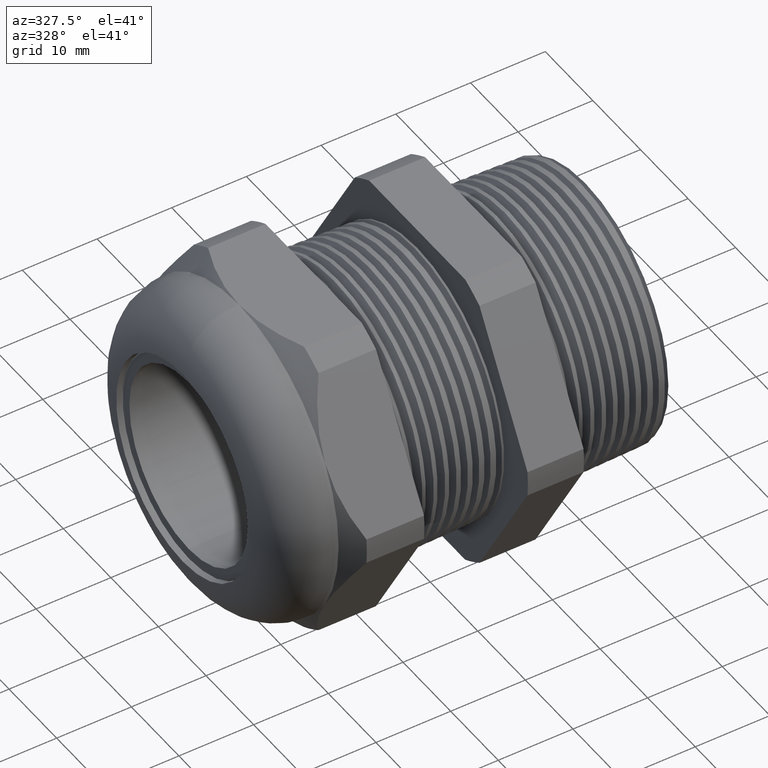
[diagram: clean part render]
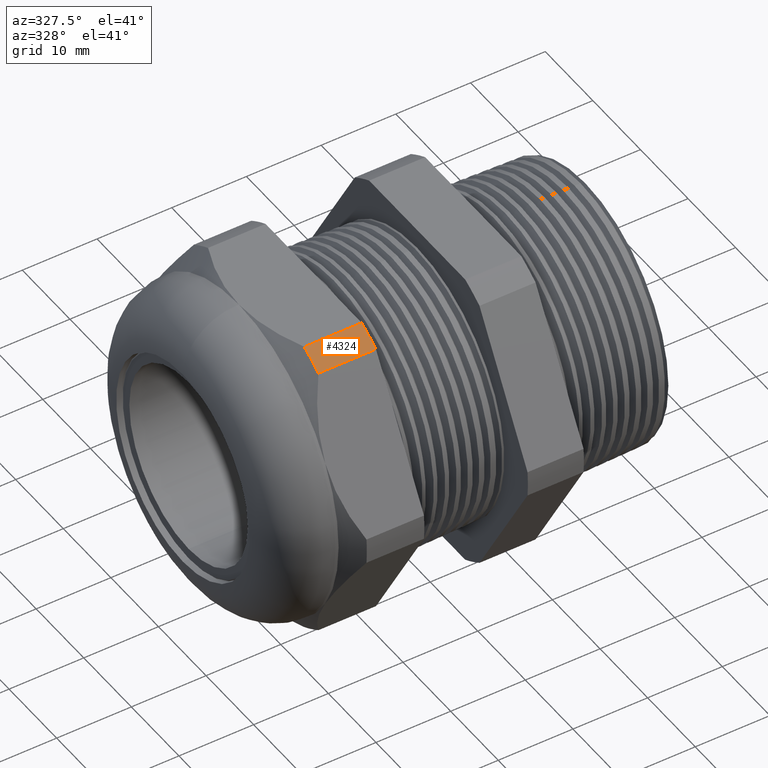
[diagram: same view with one face highlighted and labeled with its STEP entity id]
A machine part, auxiliary view. The second image highlights one B-rep face of the part: STEP entity #4324.
In plain terms, the highlighted cylindrical surface (partial cylindrical patch) has radius 23.26 mm, axis along (-1, 0, 0).
Its self-contained STEP definition (entity closure, byte-faithful):
#123 = CARTESIAN_POINT ( 'NONE',  ( -1.151023622047244100, -0.5157418318598042700, 0.7567089436301738200 ) ) ;
#137 = CIRCLE ( 'NONE', #197, 0.9157500000000000600 ) ;
#171 = DIRECTION ( 'NONE',  ( -1.000000000000000000, 0.0000000000000000000, 0.0000000000000000000 ) ) ;
#172 = VECTOR ( 'NONE', #171, 39.37007874015748100 ) ;
#173 = CARTESIAN_POINT ( 'NONE',  ( 0.2800000000000000300, -0.3974582525247151200, 0.8249999999999999600 ) ) ;
#174 = LINE ( 'NONE', #173, #172 ) ;
#175 = CARTESIAN_POINT ( 'NONE',  ( -1.151023622047244100, -0.3974582525247151200, 0.8249999999999999600 ) ) ;
#184 = DIRECTION ( 'NONE',  ( -1.000000000000000000, 0.0000000000000000000, 0.0000000000000000000 ) ) ;
#185 = VECTOR ( 'NONE', #184, 39.37007874015748100 ) ;
#186 = CARTESIAN_POINT ( 'NONE',  ( 0.2800000000000000300, -0.5157418318598042700, 0.7567089436301738200 ) ) ;
#187 = DIRECTION ( 'NONE',  ( 0.0000000000000000000, 0.0000000000000000000, 1.000000000000000000 ) ) ;
#188 = DIRECTION ( 'NONE',  ( -1.000000000000000000, 0.0000000000000000000, 0.0000000000000000000 ) ) ;
#189 = AXIS2_PLACEMENT_3D ( 'NONE', #192, #188, #187 ) ;
#190 = CYLINDRICAL_SURFACE ( 'NONE', #189, 0.9157500000000000600 ) ;
#191 = LINE ( 'NONE', #186, #185 ) ;
#192 = CARTESIAN_POINT ( 'NONE',  ( 0.2800000000000000300, 0.0000000000000000000, 0.0000000000000000000 ) ) ;
#193 = FACE_OUTER_BOUND ( 'NONE', #4326, .T. ) ;
#194 = DIRECTION ( 'NONE',  ( 0.0000000000000000000, 0.0000000000000000000, -1.000000000000000000 ) ) ;
#195 = DIRECTION ( 'NONE',  ( 1.000000000000000000, 0.0000000000000000000, 0.0000000000000000000 ) ) ;
#196 = CARTESIAN_POINT ( 'NONE',  ( -1.453974409448819200, 0.0000000000000000000, 0.0000000000000000000 ) ) ;
#197 = AXIS2_PLACEMENT_3D ( 'NONE', #196, #195, #194 ) ;
#198 = CARTESIAN_POINT ( 'NONE',  ( -1.453974409448819200, -0.5157418318598041600, 0.7567089436301738200 ) ) ;
#215 = CARTESIAN_POINT ( 'NONE',  ( -1.453974409448819200, -0.3974582525247151200, 0.8249999999999999600 ) ) ;
#3333 = DIRECTION ( 'NONE',  ( 0.0000000000000000000, 0.0000000000000000000, -1.000000000000000000 ) ) ;
#3334 = DIRECTION ( 'NONE',  ( 1.000000000000000000, 0.0000000000000000000, 0.0000000000000000000 ) ) ;
#3335 = AXIS2_PLACEMENT_3D ( 'NONE', #3341, #3334, #3333 ) ;
#3336 = CIRCLE ( 'NONE', #3335, 0.9157500000000000600 ) ;
#3341 = CARTESIAN_POINT ( 'NONE',  ( -1.151023622047244100, 0.0000000000000000000, 0.0000000000000000000 ) ) ;
#3980 = EDGE_CURVE ( 'NONE', #4334, #4293, #3336, .T. ) ;
#4290 = ORIENTED_EDGE ( 'NONE', *, *, #3980, .F. ) ;
#4293 = VERTEX_POINT ( 'NONE', #123 ) ;
#4319 = ORIENTED_EDGE ( 'NONE', *, *, #4320, .T. ) ;
#4320 = EDGE_CURVE ( 'NONE', #4344, #4321, #137, .T. ) ;
#4321 = VERTEX_POINT ( 'NONE', #198 ) ;
#4323 = ORIENTED_EDGE ( 'NONE', *, *, #4335, .T. ) ;
#4324 = ADVANCED_FACE ( 'NONE', ( #193 ), #190, .T. ) ;
#4325 = ORIENTED_EDGE ( 'NONE', *, *, #4328, .F. ) ;
#4326 = EDGE_LOOP ( 'NONE', ( #4323, #4319, #4325, #4290 ) ) ;
#4328 = EDGE_CURVE ( 'NONE', #4293, #4321, #191, .T. ) ;
#4334 = VERTEX_POINT ( 'NONE', #175 ) ;
#4335 = EDGE_CURVE ( 'NONE', #4334, #4344, #174, .T. ) ;
#4344 = VERTEX_POINT ( 'NONE', #215 ) ;